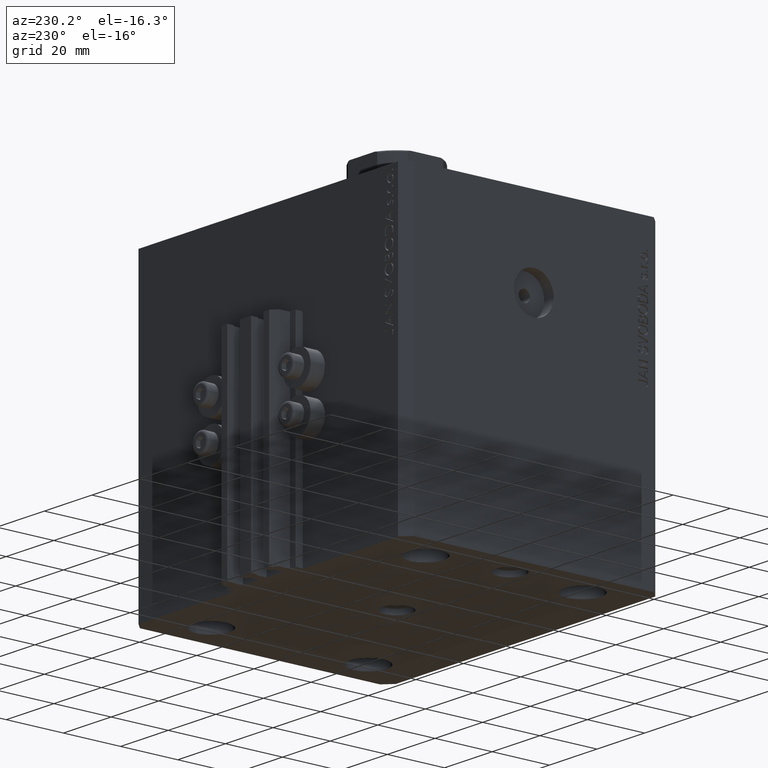
[diagram: clean part render]
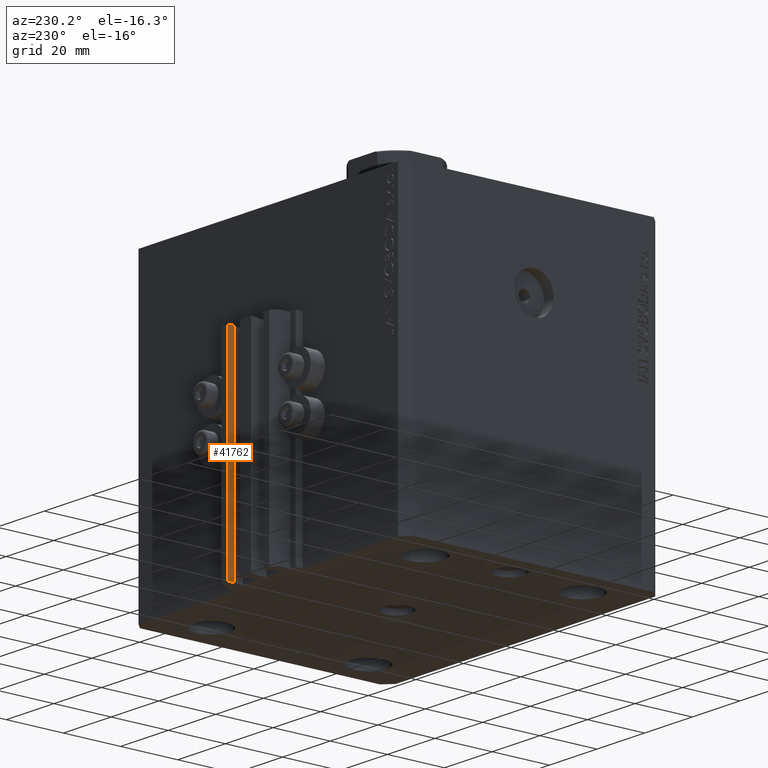
[diagram: same view with one face highlighted and labeled with its STEP entity id]
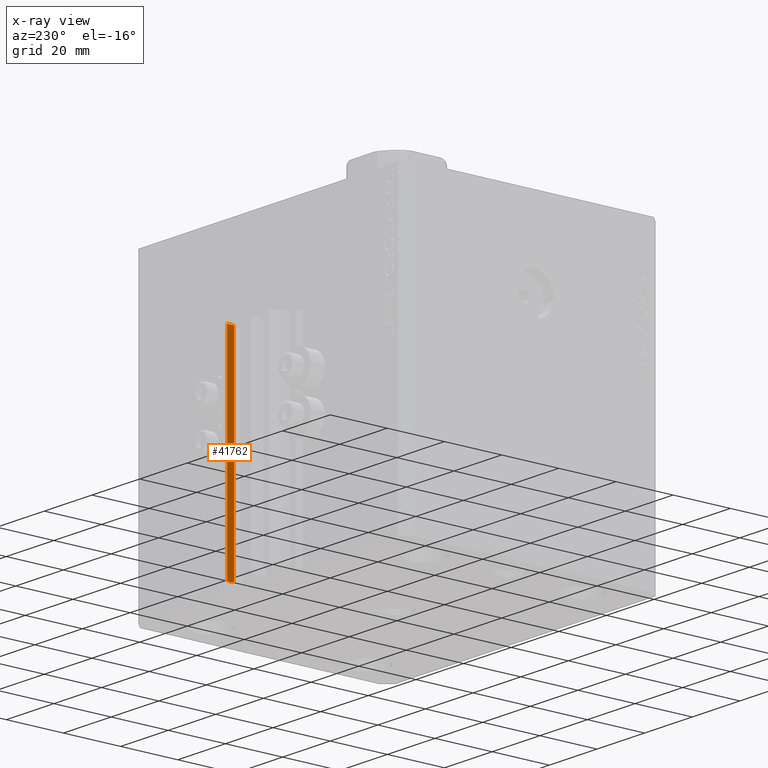
[diagram: x-ray of the same camera — body ghosted, the highlighted face saturated]
A machine part, auxiliary view. The second image highlights one B-rep face of the part: STEP entity #41762.
The next image is the same camera in x-ray: the body ghosted, the highlighted face saturated — about 0% of this face is hidden behind the body in this view.
In plain terms, the highlighted planar face has unit normal (-1, 0, 0).
Its self-contained STEP definition (entity closure, byte-faithful):
#91 = VERTEX_POINT ( 'NONE', #44760 ) ;
#1121 = EDGE_CURVE ( 'NONE', #11962, #31698, #21274, .T. ) ;
#2106 = FACE_OUTER_BOUND ( 'NONE', #43335, .T. ) ;
#3558 = DIRECTION ( 'NONE',  ( 0.000000000000000000, 0.000000000000000000, 1.000000000000000000 ) ) ;
#5308 = ORIENTED_EDGE ( 'NONE', *, *, #38788, .F. ) ;
#5325 = CARTESIAN_POINT ( 'NONE',  ( 7.649999999999998579, 53.00000000000000711, -105.0000000000000000 ) ) ;
#6004 = CARTESIAN_POINT ( 'NONE',  ( 7.649999999999998579, 53.00000000000000711, -33.00000000000000000 ) ) ;
#6098 = LINE ( 'NONE', #24519, #46121 ) ;
#6211 = DIRECTION ( 'NONE',  ( 0.000000000000000000, -1.000000000000000000, 0.000000000000000000 ) ) ;
#8273 = VECTOR ( 'NONE', #6211, 1000.000000000000000 ) ;
#8682 = DIRECTION ( 'NONE',  ( 0.000000000000000000, -1.000000000000000000, 0.000000000000000000 ) ) ;
#9664 = CARTESIAN_POINT ( 'NONE',  ( 7.649999999999998579, 53.00000000000000711, -105.0000000000000000 ) ) ;
#9977 = CARTESIAN_POINT ( 'NONE',  ( 7.649999999999998579, 53.00000000000000711, -105.0000000000000000 ) ) ;
#11217 = LINE ( 'NONE', #25806, #21610 ) ;
#11962 = VERTEX_POINT ( 'NONE', #6004 ) ;
#16297 = AXIS2_PLACEMENT_3D ( 'NONE', #9977, #32954, #39659 ) ;
#18166 = CARTESIAN_POINT ( 'NONE',  ( 7.649999999999998579, 53.00000000000000711, -33.00000000000000000 ) ) ;
#20434 = VECTOR ( 'NONE', #8682, 1000.000000000000000 ) ;
#21274 = LINE ( 'NONE', #18166, #8273 ) ;
#21610 = VECTOR ( 'NONE', #3558, 1000.000000000000000 ) ;
#24519 = CARTESIAN_POINT ( 'NONE',  ( 7.649999999999998579, 50.60000000000000853, -105.0000000000000000 ) ) ;
#25806 = CARTESIAN_POINT ( 'NONE',  ( 7.649999999999998579, 53.00000000000000711, -105.0000000000000000 ) ) ;
#29233 = ORIENTED_EDGE ( 'NONE', *, *, #31395, .T. ) ;
#30330 = VERTEX_POINT ( 'NONE', #9664 ) ;
#31395 = EDGE_CURVE ( 'NONE', #30330, #91, #41473, .T. ) ;
#31698 = VERTEX_POINT ( 'NONE', #40944 ) ;
#32954 = DIRECTION ( 'NONE',  ( -1.000000000000000000, 0.000000000000000000, 0.000000000000000000 ) ) ;
#36537 = PLANE ( 'NONE',  #16297 ) ;
#38788 = EDGE_CURVE ( 'NONE', #30330, #11962, #11217, .T. ) ;
#39125 = DIRECTION ( 'NONE',  ( 0.000000000000000000, 0.000000000000000000, 1.000000000000000000 ) ) ;
#39659 = DIRECTION ( 'NONE',  ( 0.000000000000000000, 0.000000000000000000, 1.000000000000000000 ) ) ;
#39762 = ORIENTED_EDGE ( 'NONE', *, *, #1121, .F. ) ;
#40036 = EDGE_CURVE ( 'NONE', #91, #31698, #6098, .T. ) ;
#40944 = CARTESIAN_POINT ( 'NONE',  ( 7.649999999999998579, 50.60000000000000853, -33.00000000000000000 ) ) ;
#41473 = LINE ( 'NONE', #5325, #20434 ) ;
#41762 = ADVANCED_FACE ( 'NONE', ( #2106 ), #36537, .T. ) ;
#43335 = EDGE_LOOP ( 'NONE', ( #39762, #5308, #29233, #45094 ) ) ;
#44760 = CARTESIAN_POINT ( 'NONE',  ( 7.649999999999998579, 50.60000000000000853, -105.0000000000000000 ) ) ;
#45094 = ORIENTED_EDGE ( 'NONE', *, *, #40036, .T. ) ;
#46121 = VECTOR ( 'NONE', #39125, 1000.000000000000000 ) ;